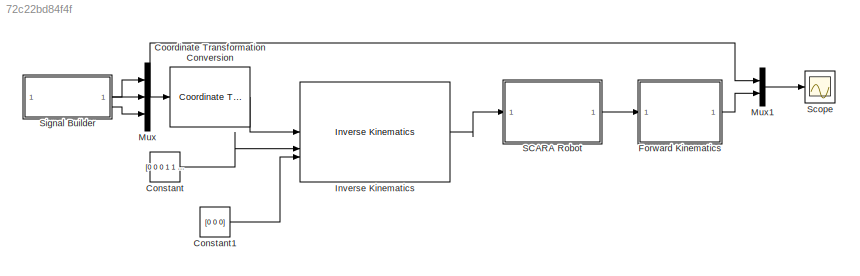
MODEL slx_72c22bd84f4f
KIND model
CONFIG AbsTol = auto
CONFIG EnableMultiTasking = off
CONFIG FixedStep = auto
CONFIG MaxStep = auto
CONFIG MinStep = auto
CONFIG RelTol = 1e-3
CONFIG SampleTimeConstraint = Unconstrained
CONFIG SolverName = VariableStepAuto
CONFIG StartTime = 0.0
CONFIG StopTime = 6
BLOCK [Constant] Constant
  Value = [0 0 0 1 1 1]
BLOCK [Constant] Constant1
  Value = [0 0 0]
BLOCK [Reference] Coordinate Transformation Conversion  REF=robotcorelib/Coordinate Transformation Conversion
  SourceBlock = robotcorelib/Coordinate Transformation Conversion
  SourceType = robotics.slcore.internal.block.CoordinateTransformationConversion
BLOCK [SubSystem] Forward Kinematics
BLOCK [Inport] Forward Kinematics/Config
BLOCK [Reference] Forward Kinematics/Coordinate Transformation Conversion  REF=robotcorelib/Coordinate Transformation Conversion
  SourceBlock = robotcorelib/Coordinate Transformation Conversion
  SourceType = robotics.slcore.internal.block.CoordinateTransformationConversion
BLOCK [Reference] Forward Kinematics/Get Transform  REF=robotmaniplib/Get Transform
  SourceBlock = robotmaniplib/Get Transform
  SourceType = Get Transform
BLOCK [Outport] Forward Kinematics/Out1
BLOCK [Reference] Inverse Kinematics  REF=robotmaniplib/Inverse Kinematics
  SourceBlock = robotmaniplib/Inverse Kinematics
  SourceType = Inverse Kinematics
BLOCK [Mux] Mux
  DisplayOption = bar
  Inputs = 3
BLOCK [Mux] Mux1
  DisplayOption = bar
  Inputs = 2
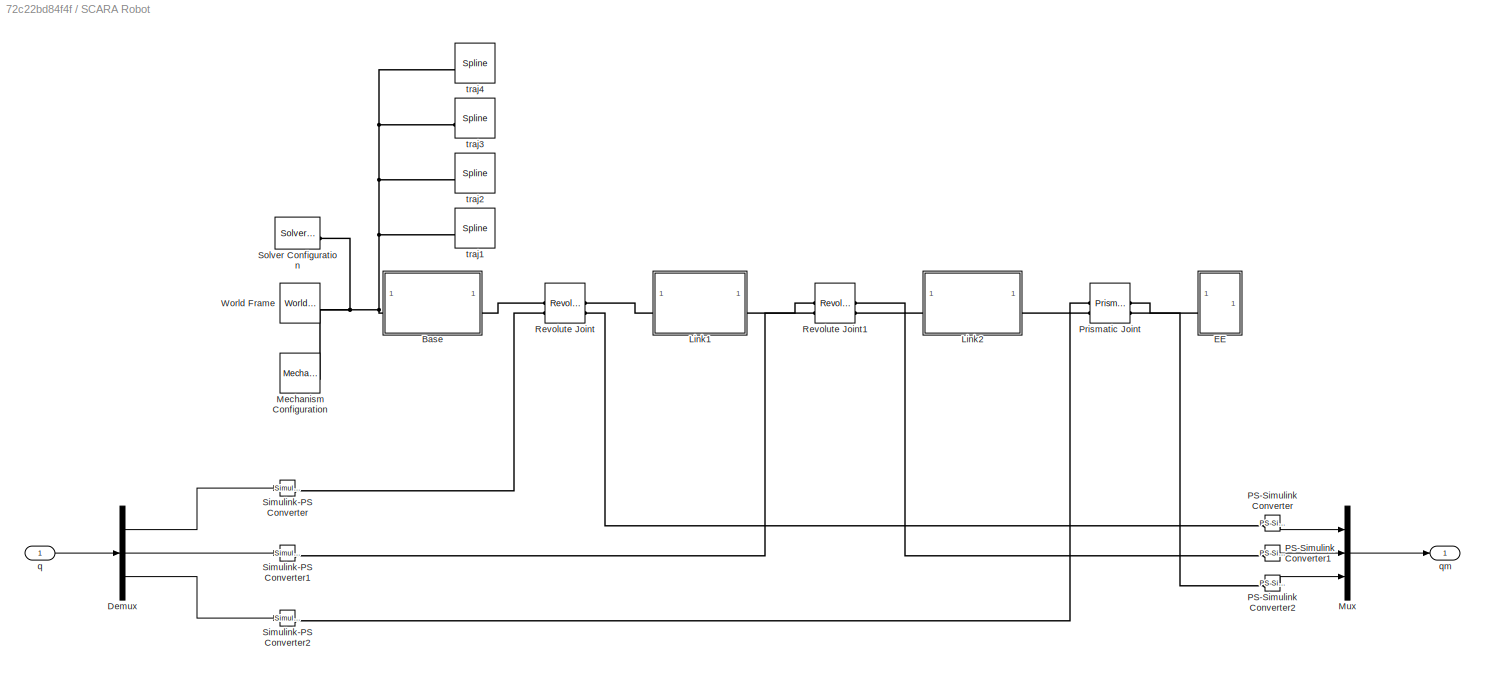
BLOCK [SubSystem] SCARA Robot
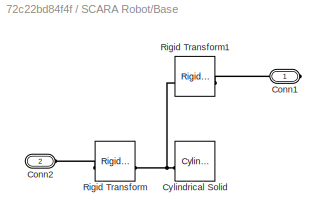
BLOCK [SubSystem] SCARA Robot/Base
BLOCK [PMIOPort] SCARA Robot/Base/Conn1
  Side = Right
BLOCK [PMIOPort] SCARA Robot/Base/Conn2
  Port = 2
  Side = Left
BLOCK [Reference] SCARA Robot/Base/Cylindrical Solid  REF=sm_lib/Body Elements/Cylindrical Solid
  SourceBlock = sm_lib/Body Elements/Cylindrical Solid
  SourceType = Cylindrical Solid
BLOCK [Reference] SCARA Robot/Base/Rigid Transform  REF=sm_lib/Frames and
Transforms/Rigid
Transform
  SourceBlock = sm_lib/Frames and\nTransforms/Rigid\nTransform
  SourceType = Rigid\nTransform
BLOCK [Reference] SCARA Robot/Base/Rigid Transform1  REF=sm_lib/Frames and
Transforms/Rigid
Transform
  SourceBlock = sm_lib/Frames and\nTransforms/Rigid\nTransform
  SourceType = Rigid\nTransform
BLOCK [Demux] SCARA Robot/Demux
  Outputs = 3
BLOCK [SubSystem] SCARA Robot/EE
BLOCK [Reference] SCARA Robot/EE/Brick Solid1  REF=sm_lib/Body Elements/Brick Solid
  SourceBlock = sm_lib/Body Elements/Brick Solid
  SourceType = Brick Solid
BLOCK [PMIOPort] SCARA Robot/EE/Conn1
  Side = Left
BLOCK [Reference] SCARA Robot/EE/Cylindrical Solid  REF=sm_lib/Body Elements/Cylindrical Solid
  SourceBlock = sm_lib/Body Elements/Cylindrical Solid
  SourceType = Cylindrical Solid
BLOCK [Reference] SCARA Robot/EE/Rigid Transform6  REF=sm_lib/Frames and
Transforms/Rigid
Transform
  SourceBlock = sm_lib/Frames and\nTransforms/Rigid\nTransform
  SourceType = Rigid\nTransform
BLOCK [SubSystem] SCARA Robot/Link1
BLOCK [Reference] SCARA Robot/Link1/Brick Solid2  REF=sm_lib/Body Elements/Brick Solid
  SourceBlock = sm_lib/Body Elements/Brick Solid
  SourceType = Brick Solid
BLOCK [PMIOPort] SCARA Robot/Link1/Conn1
  Side = Right
BLOCK [PMIOPort] SCARA Robot/Link1/Conn2
  Port = 2
  Side = Left
BLOCK [Reference] SCARA Robot/Link1/Rigid Transform2  REF=sm_lib/Frames and
Transforms/Rigid
Transform
  SourceBlock = sm_lib/Frames and\nTransforms/Rigid\nTransform
  SourceType = Rigid\nTransform
BLOCK [Reference] SCARA Robot/Link1/Rigid Transform4  REF=sm_lib/Frames and
Transforms/Rigid
Transform
  SourceBlock = sm_lib/Frames and\nTransforms/Rigid\nTransform
  SourceType = Rigid\nTransform
BLOCK [SubSystem] SCARA Robot/Link2
BLOCK [Reference] SCARA Robot/Link2/Brick Solid3  REF=sm_lib/Body Elements/Brick Solid
  SourceBlock = sm_lib/Body Elements/Brick Solid
  SourceType = Brick Solid
BLOCK [PMIOPort] SCARA Robot/Link2/Conn1
  Side = Right
BLOCK [PMIOPort] SCARA Robot/Link2/Conn2
  Port = 2
  Side = Left
BLOCK [Reference] SCARA Robot/Link2/Rigid Transform3  REF=sm_lib/Frames and
Transforms/Rigid
Transform
  SourceBlock = sm_lib/Frames and\nTransforms/Rigid\nTransform
  SourceType = Rigid\nTransform
BLOCK [Reference] SCARA Robot/Link2/Rigid Transform5  REF=sm_lib/Frames and
Transforms/Rigid
Transform
  SourceBlock = sm_lib/Frames and\nTransforms/Rigid\nTransform
  SourceType = Rigid\nTransform
BLOCK [Reference] SCARA Robot/Mechanism Configuration  REF=sm_lib/Utilities/Mechanism
Configuration
  SourceBlock = sm_lib/Utilities/Mechanism\nConfiguration
  SourceType = Mechanism\nConfiguration
BLOCK [Mux] SCARA Robot/Mux
  DisplayOption = bar
  Inputs = 3
BLOCK [Reference] SCARA Robot/PS-Simulink Converter  REF=nesl_utility/PS-Simulink
Converter
  SourceBlock = nesl_utility/PS-Simulink\nConverter
  SourceType = PS-Simulink\nConverter
BLOCK [Reference] SCARA Robot/PS-Simulink Converter1  REF=nesl_utility/PS-Simulink
Converter
  SourceBlock = nesl_utility/PS-Simulink\nConverter
  SourceType = PS-Simulink\nConverter
BLOCK [Reference] SCARA Robot/PS-Simulink Converter2  REF=nesl_utility/PS-Simulink
Converter
  SourceBlock = nesl_utility/PS-Simulink\nConverter
  SourceType = PS-Simulink\nConverter
BLOCK [Reference] SCARA Robot/Prismatic Joint  REF=sm_lib/Joints/Prismatic
Joint
  SourceBlock = sm_lib/Joints/Prismatic\nJoint
  SourceType = Prismatic\nJoint
BLOCK [Reference] SCARA Robot/Revolute Joint  REF=sm_lib/Joints/Revolute Joint
  SourceBlock = sm_lib/Joints/Revolute Joint
  SourceType = Revolute Joint
BLOCK [Reference] SCARA Robot/Revolute Joint1  REF=sm_lib/Joints/Revolute Joint
  SourceBlock = sm_lib/Joints/Revolute Joint
  SourceType = Revolute Joint
BLOCK [Reference] SCARA Robot/Simulink-PS Converter  REF=nesl_utility/Simulink-PS
Converter
  SourceBlock = nesl_utility/Simulink-PS\nConverter
  SourceType = Simulink-PS\nConverter
BLOCK [Reference] SCARA Robot/Simulink-PS Converter1  REF=nesl_utility/Simulink-PS
Converter
  SourceBlock = nesl_utility/Simulink-PS\nConverter
  SourceType = Simulink-PS\nConverter
BLOCK [Reference] SCARA Robot/Simulink-PS Converter2  REF=nesl_utility/Simulink-PS
Converter
  SourceBlock = nesl_utility/Simulink-PS\nConverter
  SourceType = Simulink-PS\nConverter
BLOCK [Reference] SCARA Robot/Solver Configuration  REF=nesl_utility/Solver
Configuration
  SourceBlock = nesl_utility/Solver\nConfiguration
  SourceType = Solver\nConfiguration
BLOCK [Reference] SCARA Robot/World Frame  REF=sm_lib/Frames and
Transforms/World Frame
  SourceBlock = sm_lib/Frames and\nTransforms/World Frame
  SourceType = World Frame
BLOCK [Inport] SCARA Robot/q
BLOCK [Outport] SCARA Robot/qm
BLOCK [Reference] SCARA Robot/traj1  REF=sm_lib/Curves and Surfaces/Spline
  SourceBlock = sm_lib/Curves and Surfaces/Spline
  SourceType = Spline
BLOCK [Reference] SCARA Robot/traj2  REF=sm_lib/Curves and Surfaces/Spline
  SourceBlock = sm_lib/Curves and Surfaces/Spline
  SourceType = Spline
BLOCK [Reference] SCARA Robot/traj3  REF=sm_lib/Curves and Surfaces/Spline
  SourceBlock = sm_lib/Curves and Surfaces/Spline
  SourceType = Spline
BLOCK [Reference] SCARA Robot/traj4  REF=sm_lib/Curves and Surfaces/Spline
  SourceBlock = sm_lib/Curves and Surfaces/Spline
  SourceType = Spline
BLOCK [Scope] Scope
  Floating = off
  NumInputPorts = 1
  ScopeSpecificationString = Simulink.scopes.TimeScopeBlockCfg('CurrentConfiguration', extmgr.ConfigurationSet(extmgr.Configuration('Core','General UI',true),extmgr.Configuration('Core','Source UI',true),extmgr.Configuration('Sources','WiredSimulink',true),extmgr.Configuration('Visuals','Time Domain',true,'SerializedDisplays',{struct('MinYLimReal','-0.12812','MaxYLimReal','1.15312','YLabelReal','','MinYLimMag','0.00000','MaxY...<+2346ch>
BLOCK [SubSystem] Signal Builder
  ClipboardFcn = sigbuilder_block('clipboard');
  CloseFcn = sigbuilder_block('close');
  ContinueFcn = sigbuilder_block('continue');
  CopyFcn = sigbuilder_block('copy');
  DeleteFcn = sigbuilder_block('delete');
  LoadFcn = sigbuilder_block('load',[437.6 199.2 550.4 400 ]);
  MaskHideContents = on
  ModelCloseFcn = sigbuilder_block('modelClose');
  NameChangeFcn = sigbuilder_block('namechange');
  OpenFcn = sigbuilder_block('open',[437.6 199.2 550.4 400 ]);
  PauseFcn = sigbuilder_block('pause');
  PreSaveFcn = sigbuilder_block('preSave');
  StartFcn = sigbuilder_block('start');
  StopFcn = sigbuilder_block('stop');
  Tag = STV Subsys
BLOCK [Demux] Signal Builder/Demux
  DisplayOption = none
  Outputs = 3
  Tag = STV Demux
BLOCK [FromWorkspace] Signal Builder/FromWs
  Tag = STV FromWs
  VariableName = tuvar
BLOCK [Outport] Signal Builder/X-Traj
  Tag = STV Outport
BLOCK [Outport] Signal Builder/Y-Traj
  Port = 2
  Tag = STV Outport
BLOCK [Outport] Signal Builder/Z-Traj
  Port = 3
  Tag = STV Outport
LINE Constant1:1 -> Inverse Kinematics:3
LINE Constant:1 -> Inverse Kinematics:2
LINE Coordinate Transformation Conversion:1 -> Inverse Kinematics:1
LINE Forward Kinematics/Config:1 -> Forward Kinematics/Get Transform:1
LINE Forward Kinematics/Coordinate Transformation Conversion:1 -> Forward Kinematics/Out1:1
LINE Forward Kinematics/Get Transform:1 -> Forward Kinematics/Coordinate Transformation Conversion:1
LINE Forward Kinematics:1 -> Mux1:2
LINE Inverse Kinematics:1 -> SCARA Robot:1
LINE Mux1:1 -> Scope:1
NET Mux:1 -> Coordinate Transformation Conversion:1, Mux1:1
LINE SCARA Robot/Demux:1 -> SCARA Robot/Simulink-PS Converter:1
LINE SCARA Robot/Demux:2 -> SCARA Robot/Simulink-PS Converter1:1
LINE SCARA Robot/Demux:3 -> SCARA Robot/Simulink-PS Converter2:1
LINE SCARA Robot/Mux:1 -> SCARA Robot/qm:1
LINE SCARA Robot/PS-Simulink Converter1:1 -> SCARA Robot/Mux:2
LINE SCARA Robot/PS-Simulink Converter2:1 -> SCARA Robot/Mux:3
LINE SCARA Robot/PS-Simulink Converter:1 -> SCARA Robot/Mux:1
LINE SCARA Robot/q:1 -> SCARA Robot/Demux:1
LINE SCARA Robot:1 -> Forward Kinematics:1
LINE Signal Builder:1 -> Mux:1
LINE Signal Builder:2 -> Mux:2
LINE Signal Builder:3 -> Mux:3
PLINE SCARA Robot/Base/Conn1:RConn1 -- SCARA Robot/Base/Rigid Transform1:RConn1
PLINE SCARA Robot/Base/Conn2:RConn1 -- SCARA Robot/Base/Rigid Transform:LConn1
PNET net1: SCARA Robot/Base/Cylindrical Solid:RConn1 -- SCARA Robot/Base/Rigid Transform1:LConn1 -- SCARA Robot/Base/Rigid Transform:RConn1
PNET net2: SCARA Robot/Base:LConn1 -- SCARA Robot/Mechanism Configuration:RConn1 -- SCARA Robot/Solver Configuration:RConn1 -- SCARA Robot/World Frame:RConn1 -- SCARA Robot/traj1:LConn1 -- SCARA Robot/traj2:LConn1 -- SCARA Robot/traj3:LConn1 -- SCARA Robot/traj4:LConn1
PLINE SCARA Robot/Base:RConn1 -- SCARA Robot/Revolute Joint:LConn1
PLINE SCARA Robot/EE/Conn1:RConn1 -- SCARA Robot/EE/Rigid Transform6:LConn1
PLINE SCARA Robot/EE/Cylindrical Solid:RConn1 -- SCARA Robot/EE/Rigid Transform6:RConn1
PLINE SCARA Robot/EE:LConn1 -- SCARA Robot/Prismatic Joint:RConn1
PNET net3: SCARA Robot/Link1/Brick Solid2:RConn1 -- SCARA Robot/Link1/Rigid Transform2:LConn1 -- SCARA Robot/Link1/Rigid Transform4:RConn1
PLINE SCARA Robot/Link1/Conn1:RConn1 -- SCARA Robot/Link1/Rigid Transform2:RConn1
PLINE SCARA Robot/Link1/Conn2:RConn1 -- SCARA Robot/Link1/Rigid Transform4:LConn1
PLINE SCARA Robot/Link1:LConn1 -- SCARA Robot/Revolute Joint:RConn1
PLINE SCARA Robot/Link1:RConn1 -- SCARA Robot/Revolute Joint1:LConn1
PNET net4: SCARA Robot/Link2/Brick Solid3:RConn1 -- SCARA Robot/Link2/Rigid Transform3:LConn1 -- SCARA Robot/Link2/Rigid Transform5:RConn1
PLINE SCARA Robot/Link2/Conn1:RConn1 -- SCARA Robot/Link2/Rigid Transform3:RConn1
PLINE SCARA Robot/Link2/Conn2:RConn1 -- SCARA Robot/Link2/Rigid Transform5:LConn1
PLINE SCARA Robot/Link2:LConn1 -- SCARA Robot/Revolute Joint1:RConn1
PLINE SCARA Robot/Link2:RConn1 -- SCARA Robot/Prismatic Joint:LConn1
PLINE SCARA Robot/PS-Simulink Converter1:LConn1 -- SCARA Robot/Revolute Joint1:RConn2
PLINE SCARA Robot/PS-Simulink Converter2:LConn1 -- SCARA Robot/Prismatic Joint:RConn2
PLINE SCARA Robot/PS-Simulink Converter:LConn1 -- SCARA Robot/Revolute Joint:RConn2
PLINE SCARA Robot/Prismatic Joint:LConn2 -- SCARA Robot/Simulink-PS Converter2:RConn1
PLINE SCARA Robot/Revolute Joint1:LConn2 -- SCARA Robot/Simulink-PS Converter1:RConn1
PLINE SCARA Robot/Revolute Joint:LConn2 -- SCARA Robot/Simulink-PS Converter:RConn1
note: NET lines group one-source signal fan-out (src -> all destinations, sorted); 1:1 wires keep LINE; PNET lines group multi-terminal physical nets as a canonical sorted terminal list (undirected conserving connections); 2-terminal nets keep the pairwise PLINE form
